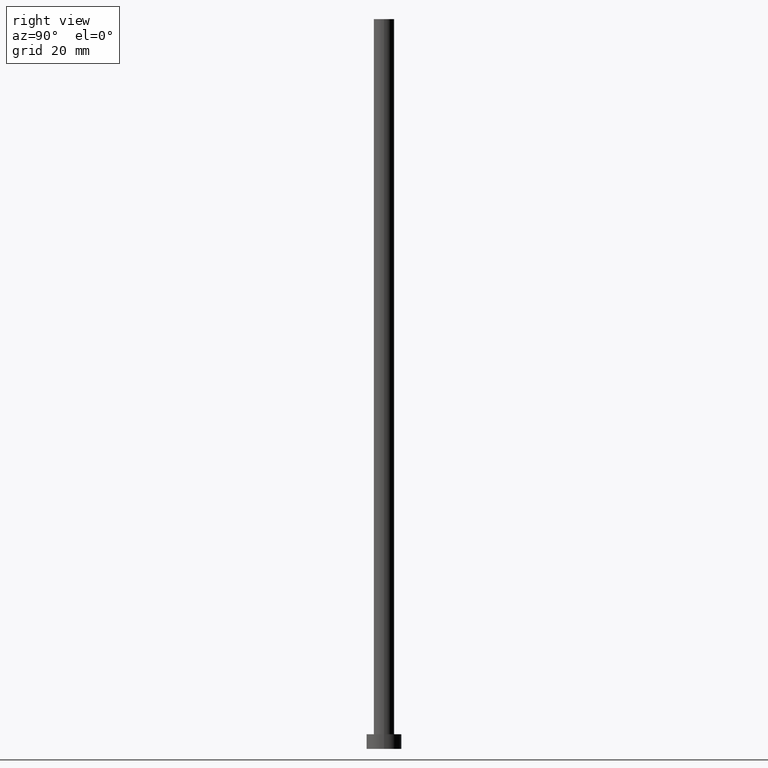
[diagram: clean part render]
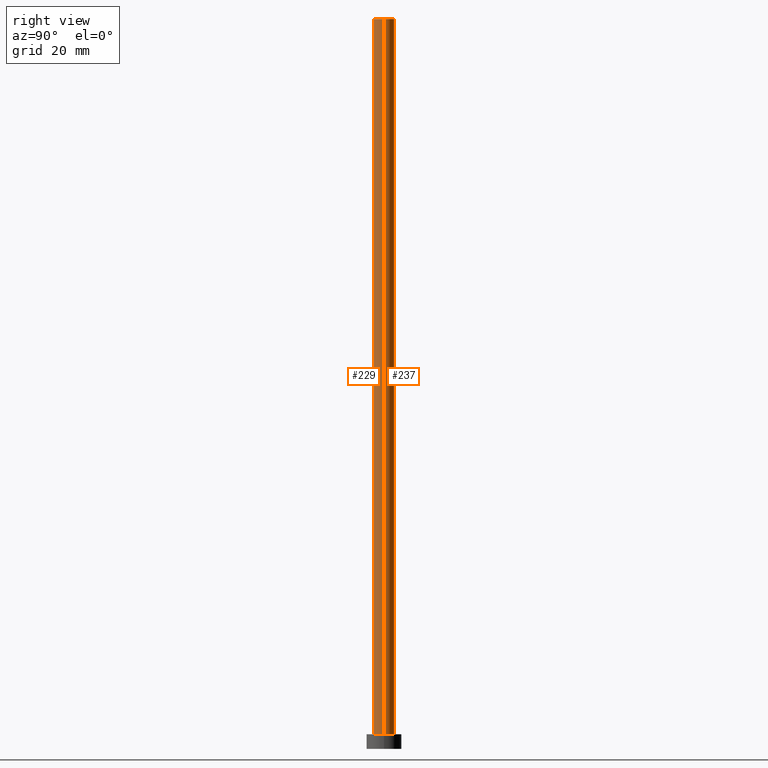
[diagram: same view with one multi-face feature highlighted, each face labeled with its STEP entity id]
A machine part, right view. The highlighted faces form ONE feature: a constant-radius fillet chain: 2 tangent blend faces with common blend radius 3.5 mm. The faces share edges in the B-rep.
Their STEP definitions:
[1] entity #229 (Cylinder):
#3 = CARTESIAN_POINT ( 'NONE',  ( 0.000000000000000000, 0.000000000000000000, 5.000000000000000000 ) ) ;
#6 = EDGE_CURVE ( 'NONE', #248, #48, #94, .T. ) ;
#11 = CYLINDRICAL_SURFACE ( 'NONE', #185, 3.500000000000000000 ) ;
#23 = LINE ( 'NONE', #105, #253 ) ;
#48 = VERTEX_POINT ( 'NONE', #72 ) ;
#57 = CARTESIAN_POINT ( 'NONE',  ( -3.500000000000000000, 0.000000000000000000, 250.0000000000000000 ) ) ;
#61 = DIRECTION ( 'NONE',  ( 1.000000000000000000, 0.000000000000000000, 0.000000000000000000 ) ) ;
#62 = EDGE_CURVE ( 'NONE', #248, #79, #198, .T. ) ;
#65 = DIRECTION ( 'NONE',  ( -0.000000000000000000, -0.000000000000000000, -1.000000000000000000 ) ) ;
#67 = VECTOR ( 'NONE', #115, 1000.000000000000000 ) ;
#72 = CARTESIAN_POINT ( 'NONE',  ( -3.500000000000000000, 0.000000000000000000, 5.000000000000000000 ) ) ;
#79 = VERTEX_POINT ( 'NONE', #80 ) ;
#80 = CARTESIAN_POINT ( 'NONE',  ( 3.500000000000000000, 4.286263797015736595E-16, 250.0000000000000000 ) ) ;
#94 = LINE ( 'NONE', #254, #67 ) ;
#105 = CARTESIAN_POINT ( 'NONE',  ( 3.500000000000000000, 4.286263797015736595E-16, 250.0000000000000000 ) ) ;
#106 = DIRECTION ( 'NONE',  ( 1.000000000000000000, 0.000000000000000000, 0.000000000000000000 ) ) ;
#111 = ORIENTED_EDGE ( 'NONE', *, *, #6, .T. ) ;
#115 = DIRECTION ( 'NONE',  ( -0.000000000000000000, -0.000000000000000000, -1.000000000000000000 ) ) ;
#118 = AXIS2_PLACEMENT_3D ( 'NONE', #215, #233, #106 ) ;
#130 = EDGE_LOOP ( 'NONE', ( #199, #166, #111, #177 ) ) ;
#137 = DIRECTION ( 'NONE',  ( -0.000000000000000000, -0.000000000000000000, -1.000000000000000000 ) ) ;
#142 = AXIS2_PLACEMENT_3D ( 'NONE', #3, #232, #61 ) ;
#145 = EDGE_CURVE ( 'NONE', #79, #190, #23, .T. ) ;
#162 = CARTESIAN_POINT ( 'NONE',  ( 3.500000000000000000, 4.286263797015736595E-16, 5.000000000000000000 ) ) ;
#166 = ORIENTED_EDGE ( 'NONE', *, *, #62, .F. ) ;
#168 = DIRECTION ( 'NONE',  ( -1.000000000000000000, 0.000000000000000000, 0.000000000000000000 ) ) ;
#177 = ORIENTED_EDGE ( 'NONE', *, *, #183, .T. ) ;
#178 = FACE_OUTER_BOUND ( 'NONE', #130, .T. ) ;
#180 = CIRCLE ( 'NONE', #142, 3.500000000000000000 ) ;
#183 = EDGE_CURVE ( 'NONE', #48, #190, #180, .T. ) ;
#185 = AXIS2_PLACEMENT_3D ( 'NONE', #250, #137, #168 ) ;
#190 = VERTEX_POINT ( 'NONE', #162 ) ;
#198 = CIRCLE ( 'NONE', #118, 3.500000000000000000 ) ;
#199 = ORIENTED_EDGE ( 'NONE', *, *, #145, .F. ) ;
#215 = CARTESIAN_POINT ( 'NONE',  ( 0.000000000000000000, 0.000000000000000000, 250.0000000000000000 ) ) ;
#229 = ADVANCED_FACE ( 'NONE', ( #178 ), #11, .T. ) ;
#232 = DIRECTION ( 'NONE',  ( 0.000000000000000000, 0.000000000000000000, 1.000000000000000000 ) ) ;
#233 = DIRECTION ( 'NONE',  ( 0.000000000000000000, 0.000000000000000000, 1.000000000000000000 ) ) ;
#248 = VERTEX_POINT ( 'NONE', #57 ) ;
#250 = CARTESIAN_POINT ( 'NONE',  ( 0.000000000000000000, 0.000000000000000000, 250.0000000000000000 ) ) ;
#253 = VECTOR ( 'NONE', #65, 1000.000000000000000 ) ;
#254 = CARTESIAN_POINT ( 'NONE',  ( -3.500000000000000000, 0.000000000000000000, 250.0000000000000000 ) ) ;
[2] entity #237 (Cylinder):
#2 = AXIS2_PLACEMENT_3D ( 'NONE', #196, #21, #82 ) ;
#5 = AXIS2_PLACEMENT_3D ( 'NONE', #92, #171, #212 ) ;
#6 = EDGE_CURVE ( 'NONE', #248, #48, #94, .T. ) ;
#12 = ORIENTED_EDGE ( 'NONE', *, *, #66, .T. ) ;
#15 = CYLINDRICAL_SURFACE ( 'NONE', #5, 3.500000000000000000 ) ;
#21 = DIRECTION ( 'NONE',  ( 0.000000000000000000, 0.000000000000000000, 1.000000000000000000 ) ) ;
#23 = LINE ( 'NONE', #105, #253 ) ;
#27 = ORIENTED_EDGE ( 'NONE', *, *, #145, .T. ) ;
#29 = DIRECTION ( 'NONE',  ( 1.000000000000000000, 0.000000000000000000, 0.000000000000000000 ) ) ;
#48 = VERTEX_POINT ( 'NONE', #72 ) ;
#54 = ORIENTED_EDGE ( 'NONE', *, *, #6, .F. ) ;
#57 = CARTESIAN_POINT ( 'NONE',  ( -3.500000000000000000, 0.000000000000000000, 250.0000000000000000 ) ) ;
#65 = DIRECTION ( 'NONE',  ( -0.000000000000000000, -0.000000000000000000, -1.000000000000000000 ) ) ;
#66 = EDGE_CURVE ( 'NONE', #190, #48, #165, .T. ) ;
#67 = VECTOR ( 'NONE', #115, 1000.000000000000000 ) ;
#72 = CARTESIAN_POINT ( 'NONE',  ( -3.500000000000000000, 0.000000000000000000, 5.000000000000000000 ) ) ;
#79 = VERTEX_POINT ( 'NONE', #80 ) ;
#80 = CARTESIAN_POINT ( 'NONE',  ( 3.500000000000000000, 4.286263797015736595E-16, 250.0000000000000000 ) ) ;
#82 = DIRECTION ( 'NONE',  ( 1.000000000000000000, 0.000000000000000000, 0.000000000000000000 ) ) ;
#92 = CARTESIAN_POINT ( 'NONE',  ( 0.000000000000000000, 0.000000000000000000, 250.0000000000000000 ) ) ;
#94 = LINE ( 'NONE', #254, #67 ) ;
#103 = CIRCLE ( 'NONE', #148, 3.500000000000000000 ) ;
#105 = CARTESIAN_POINT ( 'NONE',  ( 3.500000000000000000, 4.286263797015736595E-16, 250.0000000000000000 ) ) ;
#115 = DIRECTION ( 'NONE',  ( -0.000000000000000000, -0.000000000000000000, -1.000000000000000000 ) ) ;
#145 = EDGE_CURVE ( 'NONE', #79, #190, #23, .T. ) ;
#148 = AXIS2_PLACEMENT_3D ( 'NONE', #247, #224, #29 ) ;
#162 = CARTESIAN_POINT ( 'NONE',  ( 3.500000000000000000, 4.286263797015736595E-16, 5.000000000000000000 ) ) ;
#165 = CIRCLE ( 'NONE', #2, 3.500000000000000000 ) ;
#171 = DIRECTION ( 'NONE',  ( -0.000000000000000000, -0.000000000000000000, -1.000000000000000000 ) ) ;
#188 = FACE_OUTER_BOUND ( 'NONE', #222, .T. ) ;
#190 = VERTEX_POINT ( 'NONE', #162 ) ;
#196 = CARTESIAN_POINT ( 'NONE',  ( 0.000000000000000000, 0.000000000000000000, 5.000000000000000000 ) ) ;
#212 = DIRECTION ( 'NONE',  ( -1.000000000000000000, 0.000000000000000000, 0.000000000000000000 ) ) ;
#222 = EDGE_LOOP ( 'NONE', ( #242, #27, #12, #54 ) ) ;
#224 = DIRECTION ( 'NONE',  ( 0.000000000000000000, 0.000000000000000000, 1.000000000000000000 ) ) ;
#235 = EDGE_CURVE ( 'NONE', #79, #248, #103, .T. ) ;
#237 = ADVANCED_FACE ( 'NONE', ( #188 ), #15, .T. ) ;
#242 = ORIENTED_EDGE ( 'NONE', *, *, #235, .F. ) ;
#247 = CARTESIAN_POINT ( 'NONE',  ( 0.000000000000000000, 0.000000000000000000, 250.0000000000000000 ) ) ;
#248 = VERTEX_POINT ( 'NONE', #57 ) ;
#253 = VECTOR ( 'NONE', #65, 1000.000000000000000 ) ;
#254 = CARTESIAN_POINT ( 'NONE',  ( -3.500000000000000000, 0.000000000000000000, 250.0000000000000000 ) ) ;